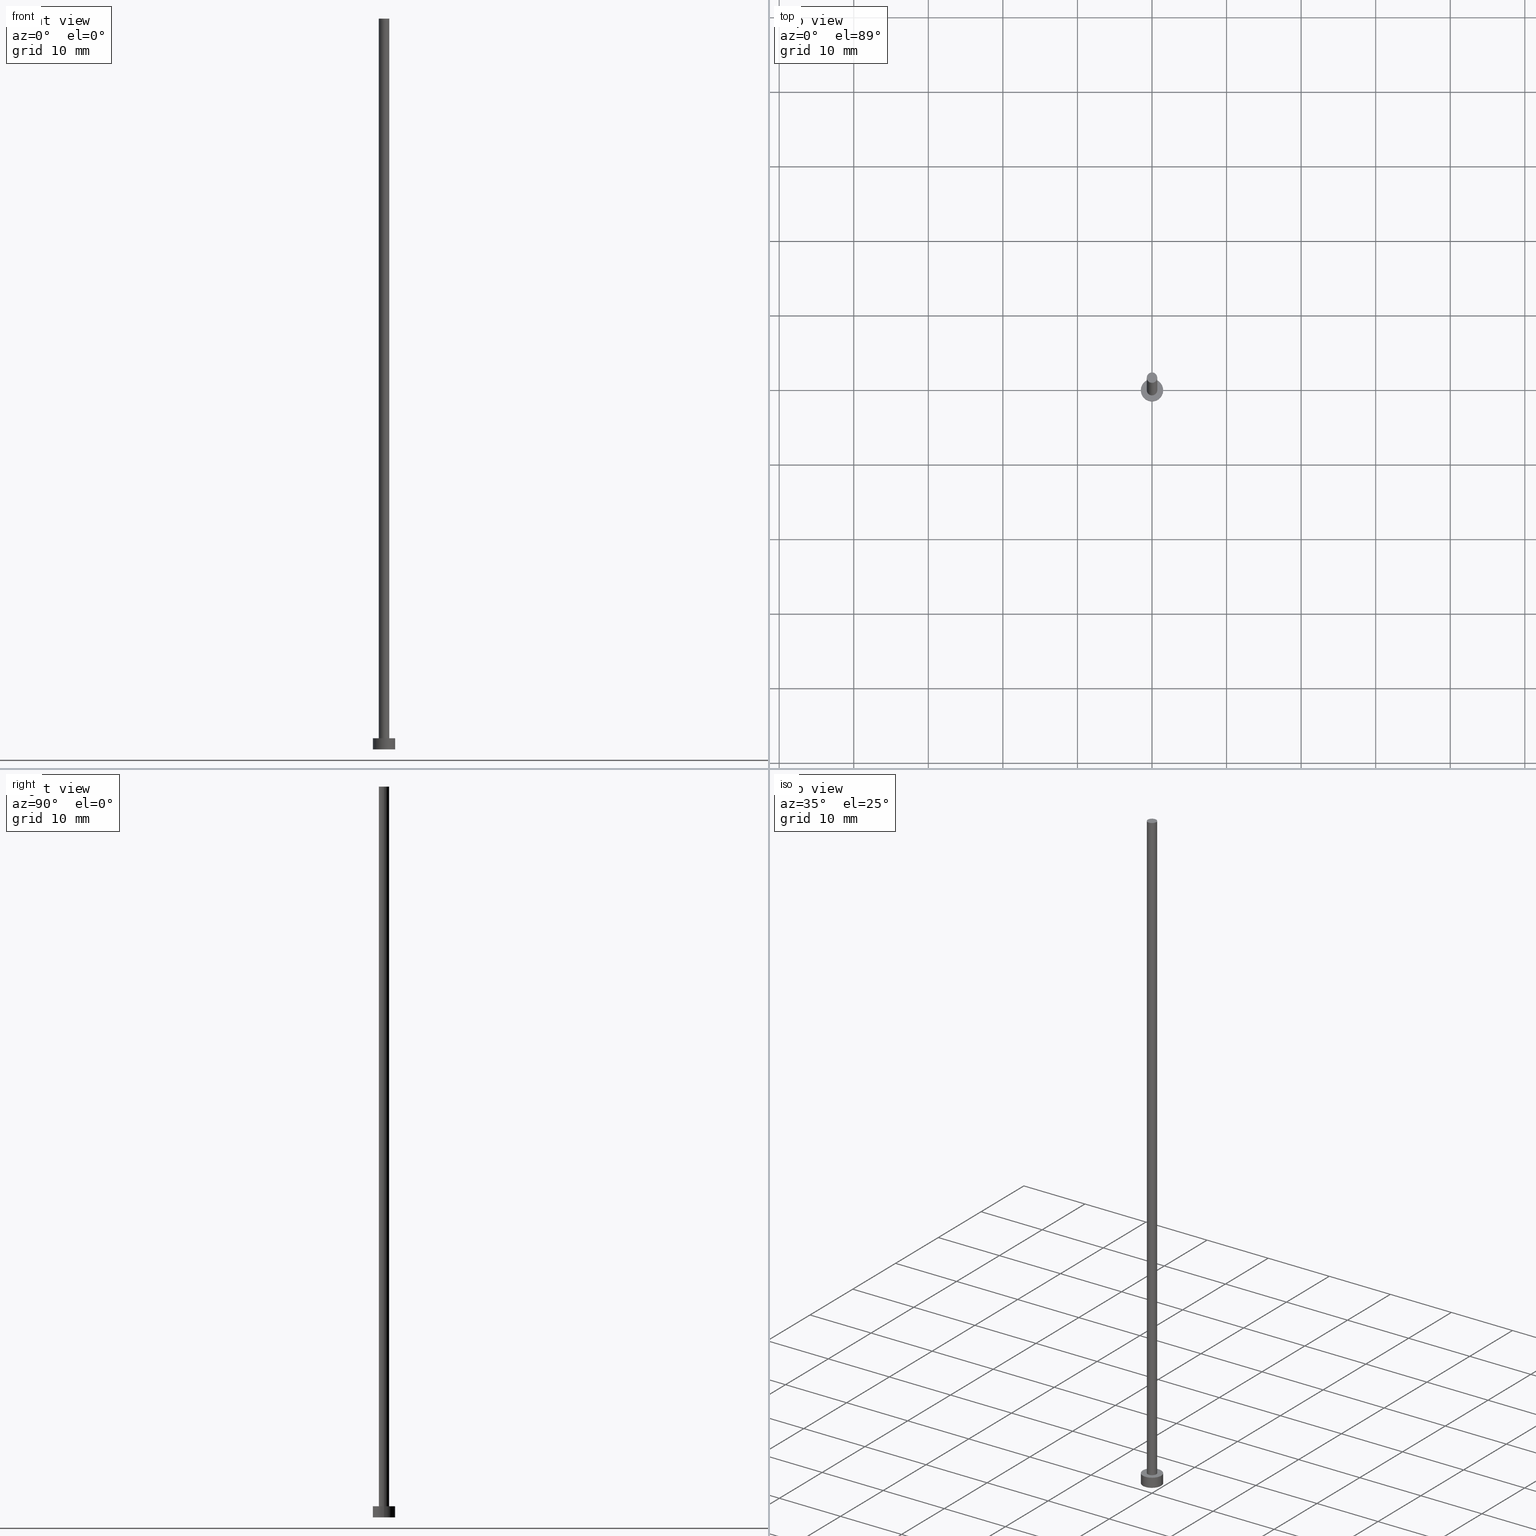
[diagram: canonical four-view strip — front | top / right | iso, engineering-drawing reading convention]
A machine part, canonical four-view strip (front | top / right | iso — engineering-drawing reading convention). The complete STEP part file that produces these views, byte-faithful:
ISO-10303-21;
HEADER;
FILE_DESCRIPTION (( 'STEP AP203' ),
    '1' );
FILE_NAME ('a3fd.STEP',
    '2023-03-16T08:56:02',
    ( '' ),
    ( '' ),
    'SwSTEP 2.0',
    'SolidWorks 2019',
    '' );
FILE_SCHEMA (( 'CONFIG_CONTROL_DESIGN' ));
ENDSEC;

DATA;
#1 = CYLINDRICAL_SURFACE ( 'NONE', #238, 1.500000000000000222 ) ;
#2 = EDGE_LOOP ( 'NONE', ( #170, #177 ) ) ;
#3 = CC_DESIGN_DATE_AND_TIME_ASSIGNMENT ( #237, #63, ( #127 ) ) ;
#4 = LOCAL_TIME ( 9, 56, 2.000000000000000000, #220 ) ;
#5 = ORIENTED_EDGE ( 'NONE', *, *, #35, .F. ) ;
#6 = DIRECTION ( 'NONE',  ( -0.000000000000000000, -0.000000000000000000, -1.000000000000000000 ) ) ;
#7 = AXIS2_PLACEMENT_3D ( 'NONE', #85, #10, #195 ) ;
#8 = VERTEX_POINT ( 'NONE', #9 ) ;
#9 = CARTESIAN_POINT ( 'NONE',  ( -0.6999999999999999556, 0.000000000000000000, 98.00000000000000000 ) ) ;
#10 = DIRECTION ( 'NONE',  ( 0.000000000000000000, 0.000000000000000000, 1.000000000000000000 ) ) ;
#11 = EDGE_LOOP ( 'NONE', ( #43, #241 ) ) ;
#12 = DIRECTION ( 'NONE',  ( 1.000000000000000000, 0.000000000000000000, 0.000000000000000000 ) ) ;
#13 = APPROVAL_ROLE ( '' ) ;
#14 = CYLINDRICAL_SURFACE ( 'NONE', #42, 0.6999999999999999556 ) ;
#15 = CIRCLE ( 'NONE', #65, 0.6999999999999999556 ) ;
#16 = PRODUCT ( 'a3fd', 'a3fd', '', ( #81 ) ) ;
#17 = SHAPE_DEFINITION_REPRESENTATION ( #118, #21 ) ;
#18 = AXIS2_PLACEMENT_3D ( 'NONE', #87, #6, #155 ) ;
#19 = CARTESIAN_POINT ( 'NONE',  ( 0.6999999999999999556, 8.572527594031471957E-17, 98.00000000000000000 ) ) ;
#20 = APPROVAL_DATE_TIME ( #236, #128 ) ;
#21 = ADVANCED_BREP_SHAPE_REPRESENTATION ( 'a3fd', ( #117, #212 ), #123 ) ;
#22 = APPLICATION_PROTOCOL_DEFINITION ( 'international standard', 'config_control_design', 1994, #90 ) ;
#23 = ADVANCED_FACE ( 'NONE', ( #138 ), #33, .T. ) ;
#24 = FACE_OUTER_BOUND ( 'NONE', #71, .T. ) ;
#25 = ADVANCED_FACE ( 'NONE', ( #153, #91 ), #194, .T. ) ;
#26 = CIRCLE ( 'NONE', #176, 1.500000000000000222 ) ;
#27 = COORDINATED_UNIVERSAL_TIME_OFFSET ( 1, 0, .AHEAD. ) ;
#28 = VERTEX_POINT ( 'NONE', #32 ) ;
#29 = CIRCLE ( 'NONE', #146, 1.500000000000000222 ) ;
#30 = CARTESIAN_POINT ( 'NONE',  ( -1.500000000000000222, 0.000000000000000000, 1.500000000000000000 ) ) ;
#31 = VERTEX_POINT ( 'NONE', #226 ) ;
#32 = CARTESIAN_POINT ( 'NONE',  ( -1.500000000000000222, 0.000000000000000000, 0.000000000000000000 ) ) ;
#33 = CYLINDRICAL_SURFACE ( 'NONE', #18, 0.6999999999999999556 ) ;
#34 = FACE_OUTER_BOUND ( 'NONE', #73, .T. ) ;
#35 = EDGE_CURVE ( 'NONE', #8, #51, #152, .T. ) ;
#36 = PLANE ( 'NONE',  #218 ) ;
#37 = DIRECTION ( 'NONE',  ( 1.000000000000000000, 0.000000000000000000, -0.000000000000000000 ) ) ;
#38 = CARTESIAN_POINT ( 'NONE',  ( -1.500000000000000222, 0.000000000000000000, 1.500000000000000000 ) ) ;
#39 = APPROVAL_DATE_TIME ( #61, #104 ) ;
#40 = PERSON_AND_ORGANIZATION ( #224, #60 ) ;
#41 = APPROVAL_PERSON_ORGANIZATION ( #145, #68, #124 ) ;
#42 = AXIS2_PLACEMENT_3D ( 'NONE', #140, #95, #213 ) ;
#43 = ORIENTED_EDGE ( 'NONE', *, *, #53, .T. ) ;
#44 = PERSON_AND_ORGANIZATION_ROLE ( 'design_supplier' ) ;
#45 = EDGE_CURVE ( 'NONE', #211, #8, #190, .T. ) ;
#46 = LINE ( 'NONE', #173, #151 ) ;
#47 = CARTESIAN_POINT ( 'NONE',  ( 0.000000000000000000, 0.000000000000000000, 98.00000000000000000 ) ) ;
#48 = VECTOR ( 'NONE', #125, 1000.000000000000000 ) ;
#49 = ORIENTED_EDGE ( 'NONE', *, *, #217, .T. ) ;
#50 = EDGE_CURVE ( 'NONE', #188, #88, #86, .T. ) ;
#51 = VERTEX_POINT ( 'NONE', #178 ) ;
#52 = EDGE_LOOP ( 'NONE', ( #82, #108 ) ) ;
#53 = EDGE_CURVE ( 'NONE', #88, #188, #161, .T. ) ;
#54 = FACE_OUTER_BOUND ( 'NONE', #245, .T. ) ;
#55 = LOCAL_TIME ( 9, 56, 2.000000000000000000, #171 ) ;
#56 = DIRECTION ( 'NONE',  ( 0.000000000000000000, 0.000000000000000000, 1.000000000000000000 ) ) ;
#57 = DIRECTION ( 'NONE',  ( 1.000000000000000000, 0.000000000000000000, 0.000000000000000000 ) ) ;
#58 = PLANE ( 'NONE',  #141 ) ;
#59 = PERSON_AND_ORGANIZATION ( #224, #60 ) ;
#60 = ORGANIZATION ( 'NEUR�EN�', 'NEUR�EN�', '' ) ;
#61 = DATE_AND_TIME ( #66, #55 ) ;
#62 = PERSON_AND_ORGANIZATION_ROLE ( 'creator' ) ;
#63 = DATE_TIME_ROLE ( 'classification_date' ) ;
#64 = CC_DESIGN_DATE_AND_TIME_ASSIGNMENT ( #96, #200, ( #156 ) ) ;
#65 = AXIS2_PLACEMENT_3D ( 'NONE', #93, #98, #203 ) ;
#66 = CALENDAR_DATE ( 2023, 16, 3 ) ;
#67 = ORIENTED_EDGE ( 'NONE', *, *, #92, .F. ) ;
#68 = APPROVAL ( #251, 'NEUR�EN�' ) ;
#69 = DIRECTION ( 'NONE',  ( 1.000000000000000000, 0.000000000000000000, -0.000000000000000000 ) ) ;
#70 = DESIGN_CONTEXT ( 'detailed design', #105, 'design' ) ;
#71 = EDGE_LOOP ( 'NONE', ( #157, #131, #174, #206 ) ) ;
#72 = AXIS2_PLACEMENT_3D ( 'NONE', #192, #75, #162 ) ;
#73 = EDGE_LOOP ( 'NONE', ( #210, #227 ) ) ;
#74 = CARTESIAN_POINT ( 'NONE',  ( 0.000000000000000000, 0.000000000000000000, 1.500000000000000000 ) ) ;
#75 = DIRECTION ( 'NONE',  ( 0.000000000000000000, 0.000000000000000000, 1.000000000000000000 ) ) ;
#76 =( NAMED_UNIT ( * ) PLANE_ANGLE_UNIT ( ) SI_UNIT ( $, .RADIAN. ) );
#77 = DIRECTION ( 'NONE',  ( 0.000000000000000000, 0.000000000000000000, 1.000000000000000000 ) ) ;
#78 =( LENGTH_UNIT ( ) NAMED_UNIT ( * ) SI_UNIT ( .MILLI., .METRE. ) );
#79 = EDGE_CURVE ( 'NONE', #188, #246, #46, .T. ) ;
#80 = PERSON_AND_ORGANIZATION ( #224, #60 ) ;
#81 = MECHANICAL_CONTEXT ( 'NONE', #90, 'mechanical' ) ;
#82 = ORIENTED_EDGE ( 'NONE', *, *, #223, .F. ) ;
#83 = PRODUCT_RELATED_PRODUCT_CATEGORY ( 'detail', '', ( #16 ) ) ;
#84 = CC_DESIGN_APPROVAL ( #68, ( #154 ) ) ;
#85 = CARTESIAN_POINT ( 'NONE',  ( 0.000000000000000000, 0.000000000000000000, 1.500000000000000000 ) ) ;
#86 = CIRCLE ( 'NONE', #7, 1.500000000000000222 ) ;
#87 = CARTESIAN_POINT ( 'NONE',  ( 0.000000000000000000, 0.000000000000000000, 98.00000000000000000 ) ) ;
#88 = VERTEX_POINT ( 'NONE', #30 ) ;
#89 = EDGE_LOOP ( 'NONE', ( #191, #67, #110, #208 ) ) ;
#90 = APPLICATION_CONTEXT ( 'configuration controlled 3d designs of mechanical parts and assemblies' ) ;
#91 = FACE_OUTER_BOUND ( 'NONE', #11, .T. ) ;
#92 = EDGE_CURVE ( 'NONE', #8, #211, #135, .T. ) ;
#93 = CARTESIAN_POINT ( 'NONE',  ( 0.000000000000000000, 0.000000000000000000, 1.500000000000000000 ) ) ;
#94 = CALENDAR_DATE ( 2023, 16, 3 ) ;
#95 = DIRECTION ( 'NONE',  ( -0.000000000000000000, -0.000000000000000000, -1.000000000000000000 ) ) ;
#96 = DATE_AND_TIME ( #94, #4 ) ;
#97 = CLOSED_SHELL ( 'NONE', ( #168, #109, #231, #25, #184, #23, #205 ) ) ;
#98 = DIRECTION ( 'NONE',  ( 0.000000000000000000, 0.000000000000000000, 1.000000000000000000 ) ) ;
#99 = CARTESIAN_POINT ( 'NONE',  ( 1.500000000000000222, 1.836970198721030181E-16, 0.000000000000000000 ) ) ;
#100 = AXIS2_PLACEMENT_3D ( 'NONE', #74, #132, #158 ) ;
#101 = ORIENTED_EDGE ( 'NONE', *, *, #187, .T. ) ;
#102 = PERSON_AND_ORGANIZATION_ROLE ( 'classification_officer' ) ;
#103 = CC_DESIGN_APPROVAL ( #128, ( #156 ) ) ;
#104 = APPROVAL ( #167, 'NEUR�EN�' ) ;
#105 = APPLICATION_CONTEXT ( 'configuration controlled 3d designs of mechanical parts and assemblies' ) ;
#106 = PERSON_AND_ORGANIZATION ( #224, #60 ) ;
#107 = CALENDAR_DATE ( 2023, 16, 3 ) ;
#108 = ORIENTED_EDGE ( 'NONE', *, *, #187, .F. ) ;
#109 = ADVANCED_FACE ( 'NONE', ( #54 ), #159, .T. ) ;
#110 = ORIENTED_EDGE ( 'NONE', *, *, #35, .T. ) ;
#111 = AXIS2_PLACEMENT_3D ( 'NONE', #250, #142, #235 ) ;
#112 = DIRECTION ( 'NONE',  ( 0.000000000000000000, 0.000000000000000000, 1.000000000000000000 ) ) ;
#113 = ORIENTED_EDGE ( 'NONE', *, *, #244, .F. ) ;
#114 = ORIENTED_EDGE ( 'NONE', *, *, #50, .F. ) ;
#115 = APPROVAL_PERSON_ORGANIZATION ( #106, #104, #222 ) ;
#116 = CARTESIAN_POINT ( 'NONE',  ( 0.000000000000000000, 0.000000000000000000, 0.000000000000000000 ) ) ;
#117 = MANIFOLD_SOLID_BREP ( 'P�idat vysunut�m3', #97 ) ;
#118 = PRODUCT_DEFINITION_SHAPE ( 'NONE', 'NONE',  #156 ) ;
#119 = CARTESIAN_POINT ( 'NONE',  ( 0.000000000000000000, 0.000000000000000000, 0.000000000000000000 ) ) ;
#120 = PERSON_AND_ORGANIZATION ( #224, #60 ) ;
#121 = CC_DESIGN_PERSON_AND_ORGANIZATION_ASSIGNMENT ( #207, #102, ( #127 ) ) ;
#122 = CARTESIAN_POINT ( 'NONE',  ( 0.6999999999999999556, 8.572527594031471957E-17, 98.00000000000000000 ) ) ;
#123 =( GEOMETRIC_REPRESENTATION_CONTEXT ( 3 ) GLOBAL_UNCERTAINTY_ASSIGNED_CONTEXT ( ( #240 ) ) GLOBAL_UNIT_ASSIGNED_CONTEXT ( ( #78, #76, #221 ) ) REPRESENTATION_CONTEXT ( 'NONE', 'WORKASPACE' ) );
#124 = APPROVAL_ROLE ( '' ) ;
#125 = DIRECTION ( 'NONE',  ( -0.000000000000000000, -0.000000000000000000, -1.000000000000000000 ) ) ;
#126 = COORDINATED_UNIVERSAL_TIME_OFFSET ( 1, 0, .AHEAD. ) ;
#127 = SECURITY_CLASSIFICATION ( '', '', #130 ) ;
#128 = APPROVAL ( #234, 'NEUR�EN�' ) ;
#129 = AXIS2_PLACEMENT_3D ( 'NONE', #47, #247, #249 ) ;
#130 = SECURITY_CLASSIFICATION_LEVEL ( 'unclassified' ) ;
#131 = ORIENTED_EDGE ( 'NONE', *, *, #53, .F. ) ;
#132 = DIRECTION ( 'NONE',  ( 0.000000000000000000, 0.000000000000000000, 1.000000000000000000 ) ) ;
#133 = AXIS2_PLACEMENT_3D ( 'NONE', #134, #112, #69 ) ;
#134 = CARTESIAN_POINT ( 'NONE',  ( 0.000000000000000000, 0.000000000000000000, 1.500000000000000000 ) ) ;
#135 = CIRCLE ( 'NONE', #72, 0.6999999999999999556 ) ;
#136 = EDGE_LOOP ( 'NONE', ( #248, #49, #230, #5 ) ) ;
#137 = CC_DESIGN_PERSON_AND_ORGANIZATION_ASSIGNMENT ( #40, #44, ( #154 ) ) ;
#138 = FACE_OUTER_BOUND ( 'NONE', #89, .T. ) ;
#139 = LOCAL_TIME ( 9, 56, 2.000000000000000000, #183 ) ;
#140 = CARTESIAN_POINT ( 'NONE',  ( 0.000000000000000000, 0.000000000000000000, 98.00000000000000000 ) ) ;
#141 = AXIS2_PLACEMENT_3D ( 'NONE', #144, #56, #233 ) ;
#142 = DIRECTION ( 'NONE',  ( -0.000000000000000000, -0.000000000000000000, -1.000000000000000000 ) ) ;
#143 = CARTESIAN_POINT ( 'NONE',  ( 0.000000000000000000, 0.000000000000000000, 1.500000000000000000 ) ) ;
#144 = CARTESIAN_POINT ( 'NONE',  ( 0.000000000000000000, 0.000000000000000000, 0.000000000000000000 ) ) ;
#145 = PERSON_AND_ORGANIZATION ( #224, #60 ) ;
#146 = AXIS2_PLACEMENT_3D ( 'NONE', #119, #214, #181 ) ;
#147 = DIRECTION ( 'NONE',  ( -1.000000000000000000, 0.000000000000000000, 0.000000000000000000 ) ) ;
#148 = PERSON_AND_ORGANIZATION_ROLE ( 'design_owner' ) ;
#149 = CALENDAR_DATE ( 2023, 16, 3 ) ;
#150 = CC_DESIGN_PERSON_AND_ORGANIZATION_ASSIGNMENT ( #59, #202, ( #154 ) ) ;
#151 = VECTOR ( 'NONE', #209, 1000.000000000000000 ) ;
#152 = LINE ( 'NONE', #193, #228 ) ;
#153 = FACE_BOUND ( 'NONE', #2, .T. ) ;
#154 = PRODUCT_DEFINITION_FORMATION_WITH_SPECIFIED_SOURCE ( 'LIBOVOLN�', '', #16, .NOT_KNOWN. ) ;
#155 = DIRECTION ( 'NONE',  ( -1.000000000000000000, 0.000000000000000000, 0.000000000000000000 ) ) ;
#156 = PRODUCT_DEFINITION ( 'NEZN�M�', '', #154, #70 ) ;
#157 = ORIENTED_EDGE ( 'NONE', *, *, #79, .F. ) ;
#158 = DIRECTION ( 'NONE',  ( 1.000000000000000000, 0.000000000000000000, 0.000000000000000000 ) ) ;
#159 = CYLINDRICAL_SURFACE ( 'NONE', #111, 1.500000000000000222 ) ;
#160 = PERSON_AND_ORGANIZATION ( #224, #60 ) ;
#161 = CIRCLE ( 'NONE', #100, 1.500000000000000222 ) ;
#162 = DIRECTION ( 'NONE',  ( 1.000000000000000000, 0.000000000000000000, 0.000000000000000000 ) ) ;
#163 = APPROVAL_DATE_TIME ( #254, #68 ) ;
#164 = CALENDAR_DATE ( 2023, 16, 3 ) ;
#165 = CC_DESIGN_SECURITY_CLASSIFICATION ( #127, ( #154 ) ) ;
#166 = CC_DESIGN_PERSON_AND_ORGANIZATION_ASSIGNMENT ( #160, #62, ( #156 ) ) ;
#167 = APPROVAL_STATUS ( 'not_yet_approved' ) ;
#168 = ADVANCED_FACE ( 'NONE', ( #197 ), #14, .T. ) ;
#169 = VECTOR ( 'NONE', #232, 1000.000000000000000 ) ;
#170 = ORIENTED_EDGE ( 'NONE', *, *, #242, .F. ) ;
#171 = COORDINATED_UNIVERSAL_TIME_OFFSET ( 1, 0, .AHEAD. ) ;
#172 = AXIS2_PLACEMENT_3D ( 'NONE', #143, #253, #186 ) ;
#173 = CARTESIAN_POINT ( 'NONE',  ( 1.500000000000000222, 1.836970198721030181E-16, 1.500000000000000000 ) ) ;
#174 = ORIENTED_EDGE ( 'NONE', *, *, #244, .T. ) ;
#175 = DIRECTION ( 'NONE',  ( -0.000000000000000000, -0.000000000000000000, -1.000000000000000000 ) ) ;
#176 = AXIS2_PLACEMENT_3D ( 'NONE', #116, #196, #12 ) ;
#177 = ORIENTED_EDGE ( 'NONE', *, *, #225, .F. ) ;
#178 = CARTESIAN_POINT ( 'NONE',  ( -0.6999999999999999556, 0.000000000000000000, 1.500000000000000000 ) ) ;
#179 = LINE ( 'NONE', #19, #169 ) ;
#180 = APPLICATION_PROTOCOL_DEFINITION ( 'international standard', 'config_control_design', 1994, #105 ) ;
#181 = DIRECTION ( 'NONE',  ( 1.000000000000000000, 0.000000000000000000, 0.000000000000000000 ) ) ;
#182 = DIRECTION ( 'NONE',  ( 0.000000000000000000, 0.000000000000000000, 1.000000000000000000 ) ) ;
#183 = COORDINATED_UNIVERSAL_TIME_OFFSET ( 1, 0, .AHEAD. ) ;
#184 = ADVANCED_FACE ( 'NONE', ( #199 ), #58, .F. ) ;
#185 = CIRCLE ( 'NONE', #172, 0.6999999999999999556 ) ;
#186 = DIRECTION ( 'NONE',  ( 1.000000000000000000, 0.000000000000000000, 0.000000000000000000 ) ) ;
#187 = EDGE_CURVE ( 'NONE', #246, #28, #29, .T. ) ;
#188 = VERTEX_POINT ( 'NONE', #252 ) ;
#189 = APPROVAL_PERSON_ORGANIZATION ( #120, #128, #13 ) ;
#190 = CIRCLE ( 'NONE', #129, 0.6999999999999999556 ) ;
#191 = ORIENTED_EDGE ( 'NONE', *, *, #217, .F. ) ;
#192 = CARTESIAN_POINT ( 'NONE',  ( 0.000000000000000000, 0.000000000000000000, 98.00000000000000000 ) ) ;
#193 = CARTESIAN_POINT ( 'NONE',  ( -0.6999999999999999556, 0.000000000000000000, 98.00000000000000000 ) ) ;
#194 = PLANE ( 'NONE',  #133 ) ;
#195 = DIRECTION ( 'NONE',  ( 1.000000000000000000, 0.000000000000000000, 0.000000000000000000 ) ) ;
#196 = DIRECTION ( 'NONE',  ( 0.000000000000000000, 0.000000000000000000, 1.000000000000000000 ) ) ;
#197 = FACE_OUTER_BOUND ( 'NONE', #136, .T. ) ;
#198 = DIRECTION ( 'NONE',  ( -0.000000000000000000, -0.000000000000000000, -1.000000000000000000 ) ) ;
#199 = FACE_OUTER_BOUND ( 'NONE', #52, .T. ) ;
#200 = DATE_TIME_ROLE ( 'creation_date' ) ;
#201 = CC_DESIGN_PERSON_AND_ORGANIZATION_ASSIGNMENT ( #80, #148, ( #16 ) ) ;
#202 = PERSON_AND_ORGANIZATION_ROLE ( 'creator' ) ;
#203 = DIRECTION ( 'NONE',  ( 1.000000000000000000, 0.000000000000000000, 0.000000000000000000 ) ) ;
#204 = LOCAL_TIME ( 9, 56, 2.000000000000000000, #126 ) ;
#205 = ADVANCED_FACE ( 'NONE', ( #34 ), #36, .T. ) ;
#206 = ORIENTED_EDGE ( 'NONE', *, *, #223, .T. ) ;
#207 = PERSON_AND_ORGANIZATION ( #224, #60 ) ;
#208 = ORIENTED_EDGE ( 'NONE', *, *, #242, .T. ) ;
#209 = DIRECTION ( 'NONE',  ( -0.000000000000000000, -0.000000000000000000, -1.000000000000000000 ) ) ;
#210 = ORIENTED_EDGE ( 'NONE', *, *, #92, .T. ) ;
#211 = VERTEX_POINT ( 'NONE', #122 ) ;
#212 = AXIS2_PLACEMENT_3D ( 'NONE', #255, #182, #57 ) ;
#213 = DIRECTION ( 'NONE',  ( -1.000000000000000000, 0.000000000000000000, 0.000000000000000000 ) ) ;
#214 = DIRECTION ( 'NONE',  ( 0.000000000000000000, 0.000000000000000000, 1.000000000000000000 ) ) ;
#215 = CARTESIAN_POINT ( 'NONE',  ( 0.000000000000000000, 0.000000000000000000, 98.00000000000000000 ) ) ;
#216 = CARTESIAN_POINT ( 'NONE',  ( 0.000000000000000000, 0.000000000000000000, 1.500000000000000000 ) ) ;
#217 = EDGE_CURVE ( 'NONE', #211, #31, #179, .T. ) ;
#218 = AXIS2_PLACEMENT_3D ( 'NONE', #215, #77, #37 ) ;
#219 = LINE ( 'NONE', #38, #48 ) ;
#220 = COORDINATED_UNIVERSAL_TIME_OFFSET ( 1, 0, .AHEAD. ) ;
#221 =( NAMED_UNIT ( * ) SI_UNIT ( $, .STERADIAN. ) SOLID_ANGLE_UNIT ( ) );
#222 = APPROVAL_ROLE ( '' ) ;
#223 = EDGE_CURVE ( 'NONE', #28, #246, #26, .T. ) ;
#224 = PERSON ( 'NEUR�EN�', 'NEUR�EN�', 'NEUR�EN�', ('NEUR�EN�'), ('NEUR�EN�'), ('NEUR�EN�') ) ;
#225 = EDGE_CURVE ( 'NONE', #31, #51, #15, .T. ) ;
#226 = CARTESIAN_POINT ( 'NONE',  ( 0.6999999999999999556, 8.572527594031471957E-17, 1.500000000000000000 ) ) ;
#227 = ORIENTED_EDGE ( 'NONE', *, *, #45, .T. ) ;
#228 = VECTOR ( 'NONE', #175, 1000.000000000000000 ) ;
#229 = ORIENTED_EDGE ( 'NONE', *, *, #79, .T. ) ;
#230 = ORIENTED_EDGE ( 'NONE', *, *, #225, .T. ) ;
#231 = ADVANCED_FACE ( 'NONE', ( #24 ), #1, .T. ) ;
#232 = DIRECTION ( 'NONE',  ( -0.000000000000000000, -0.000000000000000000, -1.000000000000000000 ) ) ;
#233 = DIRECTION ( 'NONE',  ( 1.000000000000000000, 0.000000000000000000, -0.000000000000000000 ) ) ;
#234 = APPROVAL_STATUS ( 'not_yet_approved' ) ;
#235 = DIRECTION ( 'NONE',  ( -1.000000000000000000, 0.000000000000000000, 0.000000000000000000 ) ) ;
#236 = DATE_AND_TIME ( #164, #204 ) ;
#237 = DATE_AND_TIME ( #107, #243 ) ;
#238 = AXIS2_PLACEMENT_3D ( 'NONE', #216, #198, #147 ) ;
#239 = CC_DESIGN_APPROVAL ( #104, ( #127 ) ) ;
#240 = UNCERTAINTY_MEASURE_WITH_UNIT (LENGTH_MEASURE( 1.000000000000000082E-05 ), #78, 'distance_accuracy_value', 'NONE');
#241 = ORIENTED_EDGE ( 'NONE', *, *, #50, .T. ) ;
#242 = EDGE_CURVE ( 'NONE', #51, #31, #185, .T. ) ;
#243 = LOCAL_TIME ( 9, 56, 2.000000000000000000, #27 ) ;
#244 = EDGE_CURVE ( 'NONE', #88, #28, #219, .T. ) ;
#245 = EDGE_LOOP ( 'NONE', ( #114, #229, #101, #113 ) ) ;
#246 = VERTEX_POINT ( 'NONE', #99 ) ;
#247 = DIRECTION ( 'NONE',  ( 0.000000000000000000, 0.000000000000000000, 1.000000000000000000 ) ) ;
#248 = ORIENTED_EDGE ( 'NONE', *, *, #45, .F. ) ;
#249 = DIRECTION ( 'NONE',  ( 1.000000000000000000, 0.000000000000000000, 0.000000000000000000 ) ) ;
#250 = CARTESIAN_POINT ( 'NONE',  ( 0.000000000000000000, 0.000000000000000000, 1.500000000000000000 ) ) ;
#251 = APPROVAL_STATUS ( 'not_yet_approved' ) ;
#252 = CARTESIAN_POINT ( 'NONE',  ( 1.500000000000000222, 1.836970198721030181E-16, 1.500000000000000000 ) ) ;
#253 = DIRECTION ( 'NONE',  ( 0.000000000000000000, 0.000000000000000000, 1.000000000000000000 ) ) ;
#254 = DATE_AND_TIME ( #149, #139 ) ;
#255 = CARTESIAN_POINT ( 'NONE',  ( 0.000000000000000000, 0.000000000000000000, 0.000000000000000000 ) ) ;
ENDSEC;
END-ISO-10303-21;
